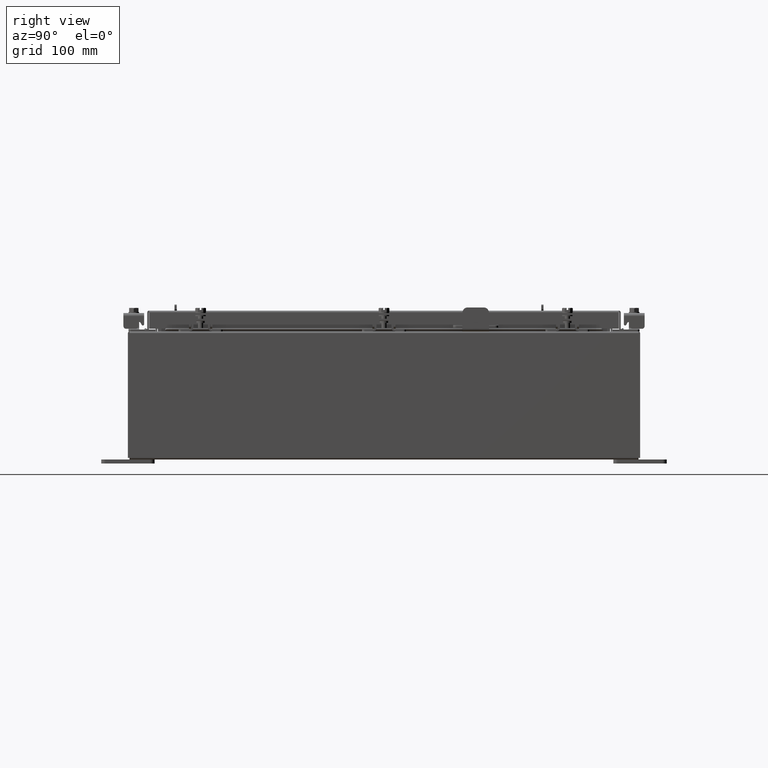
[diagram: clean part render]
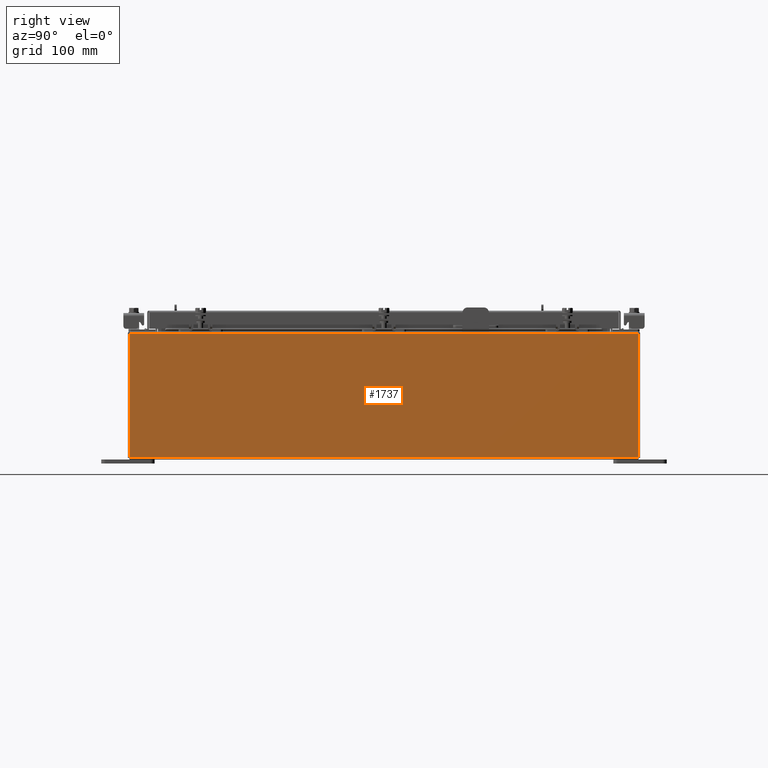
[diagram: same view with one face highlighted and labeled with its STEP entity id]
A machine part, right view. The second image highlights one B-rep face of the part: STEP entity #1737.
In plain terms, the highlighted planar face has unit normal (-1, 0, 0).
Its self-contained STEP definition (entity closure, byte-faithful):
#802 = FACE_OUTER_BOUND ( 'NONE', #13297, .T. ) ;
#1688 = ORIENTED_EDGE ( 'NONE', *, *, #4350, .F. ) ;
#1737 = ADVANCED_FACE ( 'NONE', ( #802 ), #9776, .F. ) ;
#3403 = VERTEX_POINT ( 'NONE', #6244 ) ;
#3483 = DIRECTION ( 'NONE',  ( -0.0000000000000000000, -1.000000000000000000, -0.0000000000000000000 ) ) ;
#3591 = EDGE_CURVE ( 'NONE', #6676, #19828, #17137, .T. ) ;
#3682 = DIRECTION ( 'NONE',  ( -3.319545939341922800E-015, 0.0000000000000000000, -1.000000000000000000 ) ) ;
#4350 = EDGE_CURVE ( 'NONE', #6676, #3403, #13257, .T. ) ;
#6244 = CARTESIAN_POINT ( 'NONE',  ( 10.00000000000000000, -11.92530000000000000, 0.01299999999999985900 ) ) ;
#6456 = ORIENTED_EDGE ( 'NONE', *, *, #3591, .T. ) ;
#6676 = VERTEX_POINT ( 'NONE', #21699 ) ;
#8385 = VERTEX_POINT ( 'NONE', #10311 ) ;
#8694 = CARTESIAN_POINT ( 'NONE',  ( 10.00000000000002000, 11.92530000000000000, 5.837600000000001000 ) ) ;
#8891 = CARTESIAN_POINT ( 'NONE',  ( 10.00000000000000000, -11.92530000000000000, -3.345627304943080600E-014 ) ) ;
#9041 = DIRECTION ( 'NONE',  ( 3.319545939341922000E-015, 0.0000000000000000000, 1.000000000000000000 ) ) ;
#9059 = EDGE_CURVE ( 'NONE', #19828, #8385, #18723, .T. ) ;
#9220 = CARTESIAN_POINT ( 'NONE',  ( 10.00000000000000000, 0.0000000000000000000, -3.345627304943080600E-014 ) ) ;
#9370 = CARTESIAN_POINT ( 'NONE',  ( 10.00000000000000000, -11.92530000000000000, 0.01299999999999986400 ) ) ;
#9419 = DIRECTION ( 'NONE',  ( -1.000000000000000000, 0.0000000000000000000, 3.319545939341922000E-015 ) ) ;
#9503 = ORIENTED_EDGE ( 'NONE', *, *, #15787, .T. ) ;
#9583 = DIRECTION ( 'NONE',  ( -0.0000000000000000000, -1.000000000000000000, -0.0000000000000000000 ) ) ;
#9776 = PLANE ( 'NONE',  #16128 ) ;
#10311 = CARTESIAN_POINT ( 'NONE',  ( 10.00000000000002000, -11.92530000000000000, 5.837600000000001000 ) ) ;
#11523 = VECTOR ( 'NONE', #3682, 39.37007874015748100 ) ;
#13257 = LINE ( 'NONE', #9370, #16825 ) ;
#13297 = EDGE_LOOP ( 'NONE', ( #13331, #9503, #1688, #6456 ) ) ;
#13331 = ORIENTED_EDGE ( 'NONE', *, *, #9059, .T. ) ;
#15787 = EDGE_CURVE ( 'NONE', #8385, #3403, #16200, .T. ) ;
#16128 = AXIS2_PLACEMENT_3D ( 'NONE', #9220, #9419, #9041 ) ;
#16200 = LINE ( 'NONE', #8891, #11523 ) ;
#16825 = VECTOR ( 'NONE', #9583, 39.37007874015748100 ) ;
#17137 = LINE ( 'NONE', #19953, #20649 ) ;
#18723 = LINE ( 'NONE', #8694, #22255 ) ;
#19788 = DIRECTION ( 'NONE',  ( 3.319545939341922800E-015, 0.0000000000000000000, 1.000000000000000000 ) ) ;
#19828 = VERTEX_POINT ( 'NONE', #19909 ) ;
#19909 = CARTESIAN_POINT ( 'NONE',  ( 10.00000000000002000, 11.92529999999999800, 5.837600000000001000 ) ) ;
#19953 = CARTESIAN_POINT ( 'NONE',  ( 10.00000000000000000, 11.92530000000000000, -3.345627304943080600E-014 ) ) ;
#20649 = VECTOR ( 'NONE', #19788, 39.37007874015748100 ) ;
#21699 = CARTESIAN_POINT ( 'NONE',  ( 10.00000000000000000, 11.92529999999999800, 0.01299999999999986400 ) ) ;
#22255 = VECTOR ( 'NONE', #3483, 39.37007874015748100 ) ;